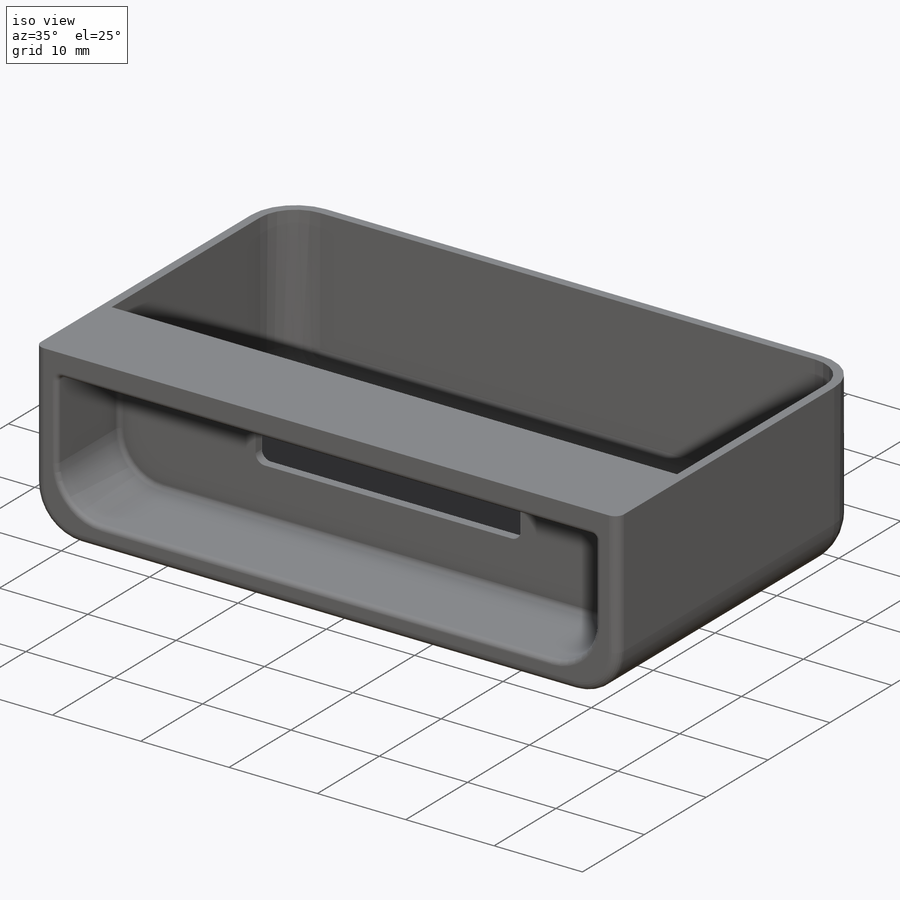
[diagram: iso view]
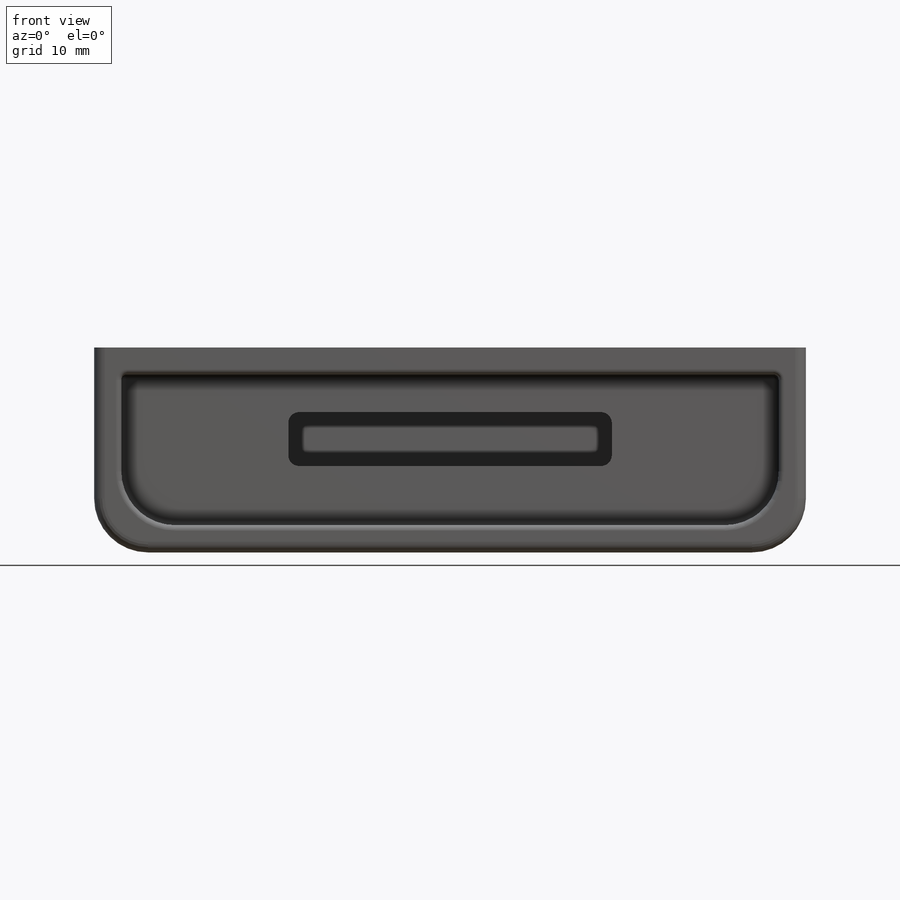
[diagram: front view]
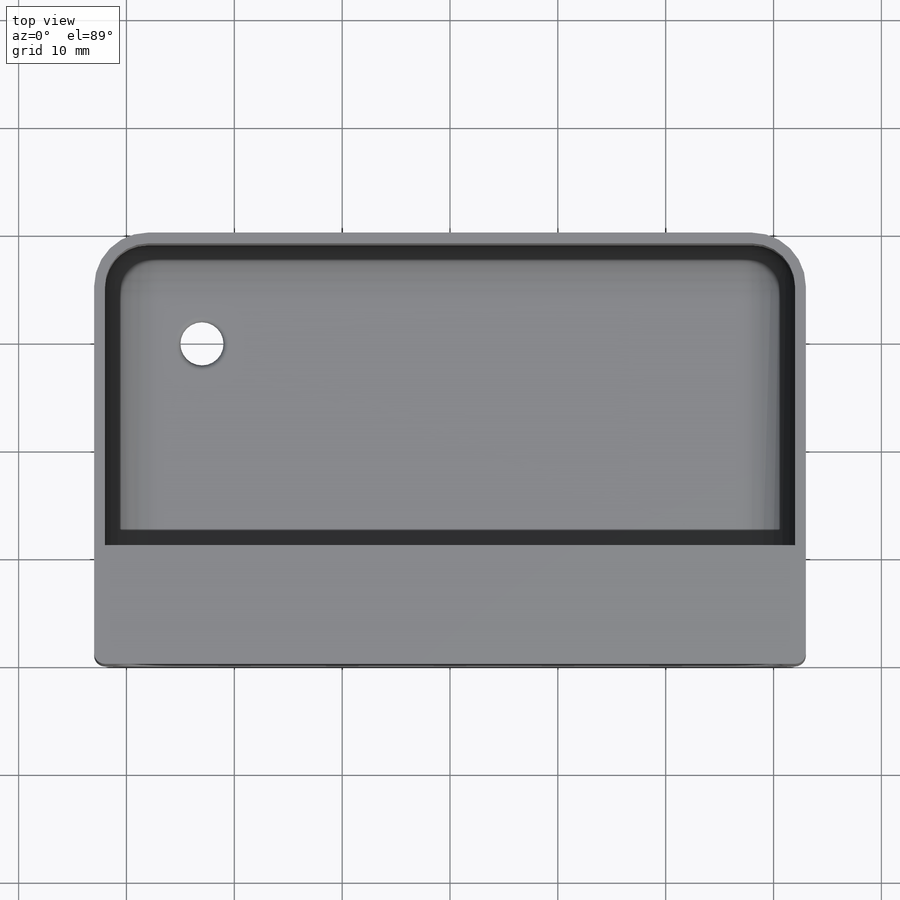
[diagram: top view]
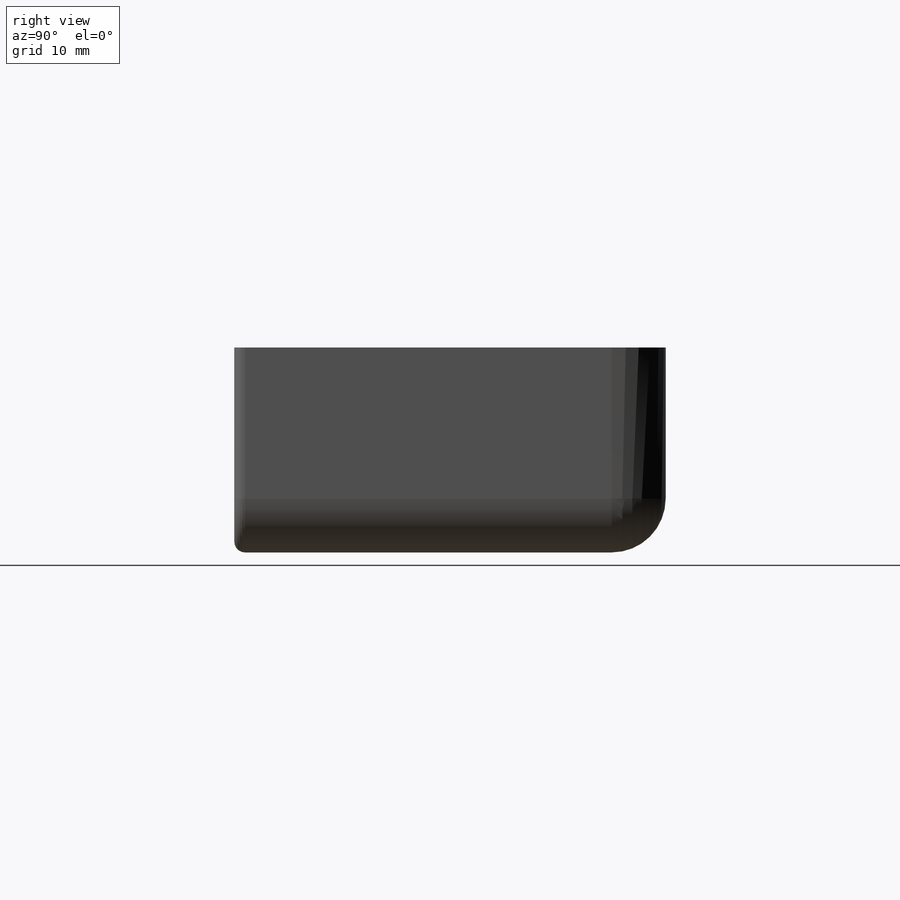
[diagram: right view]
SOLIDWORKS PART (.sldprt)
format: sldprt  version: not decoded by parser v0  size: 496,128 bytes
history: native  units: mm
features: sketch x6, fillet x5, cut_extrude x4, extrude x2, material x1, shell x1 (+12 scaffold rows collapsed)
feature tree (31):
  scaffold x12  (default folders/planes/origin — collapsed)
  material  "Material <not specified>"
  sketch  "Sketch1"  dims[D1=60.96mm D2=104.14mm D3=10.0mm D4=40.0mm D5=66.0mm D6=4.52mm]
  extrude  "Extrude1"  Depth=21mm
  fillet  "Fillet1"  Radius=1mm
  fillet  "Fillet2"  Radius=5mm
  sketch  "Sketch3"  dims[c1.D1=2.0mm c1.D2=5.0mm c1.D5=2.0mm c2.D1=13.97mm c2.D2=60.96mm c2.D3=60.96mm c2.D4=13.97mm c3.D1=2.0mm]
  cut_extrude  "Cut-Extrude1"  Depth=10mm
  fillet  "Fillet3"  Radius=0.5mm
  sketch  "Sketch4"  dims[D1=2.0mm D2=2.0mm]
  cut_extrude  "Cut-Extrude2"  [1 undecoded]
  shell  "Shell3"  Thickness=1mm
  sketch  "Sketch6"
  extrude  "Extrude2"  [1 undecoded]
  sketch  "Sketch7"  dims[D3=4.0mm D1=10.0mm D2=10.0mm]
  cut_extrude  "Cut-Extrude3"  [1 undecoded]
  sketch  "Sketch8"  dims[D1=30.0mm D2=5.0mm]
  cut_extrude  "Cut-Extrude4"  [1 undecoded]
  fillet  "Fillet5"  Radius=1mm
  fillet  "Fillet4"  Radius=0.5mm
decode coverage: 13 of 18 modeling features carry decoded parameters
note: 4 parameter values undecoded
summary: no parameter record found for 4 features
note: suppression state not decoded; provenance and decode notes live in map.json
